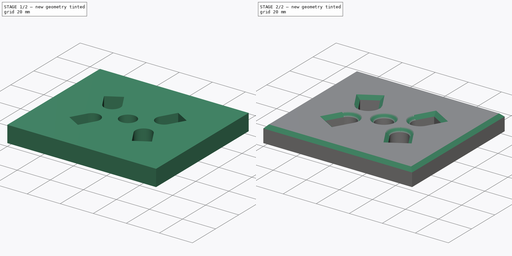
[diagram: build sequence overview — one tinted view per stage of 2, left to right]
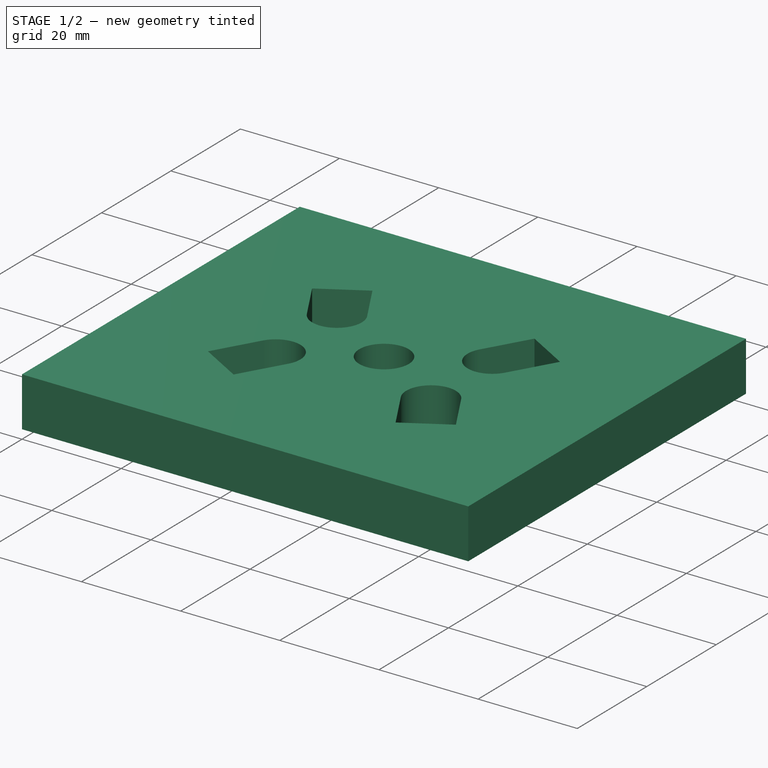
[diagram: stage 1 of 2 — iso view after this stage's code; geometry added in this stage tinted green]
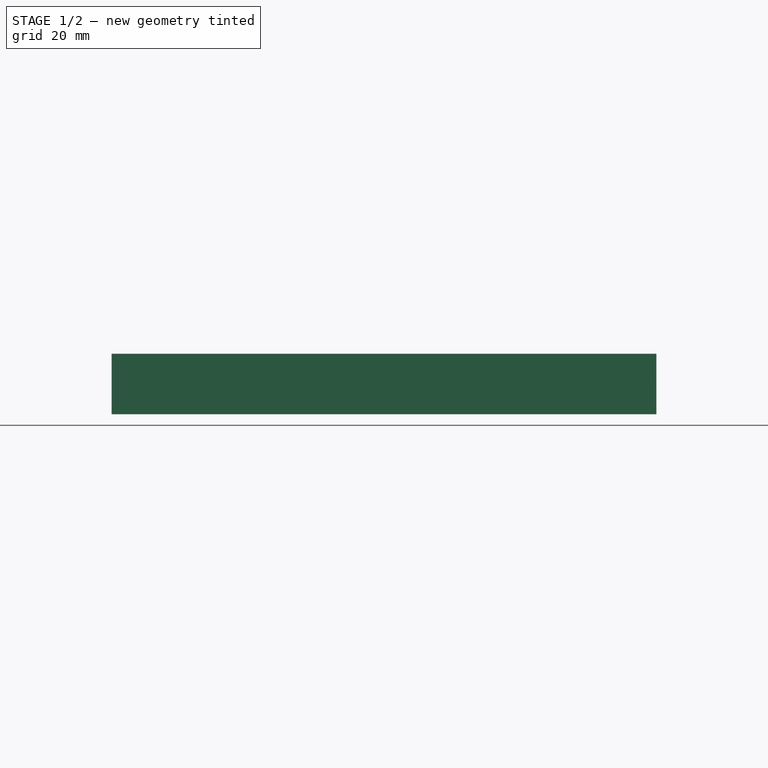
[diagram: stage 1 of 2 — front view after this stage's code; geometry added in this stage tinted green]
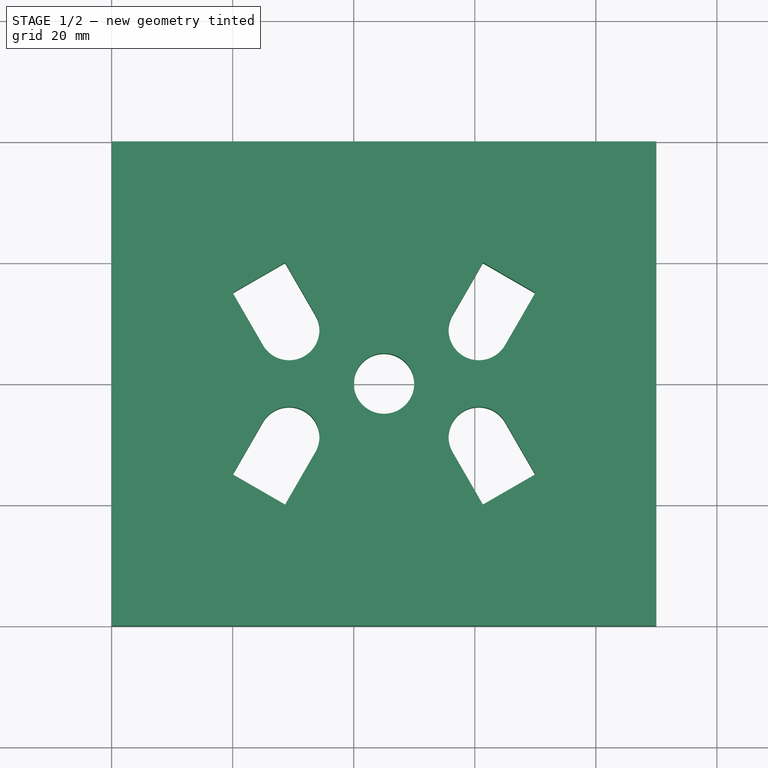
[diagram: stage 1 of 2 — top view after this stage's code; geometry added in this stage tinted green]
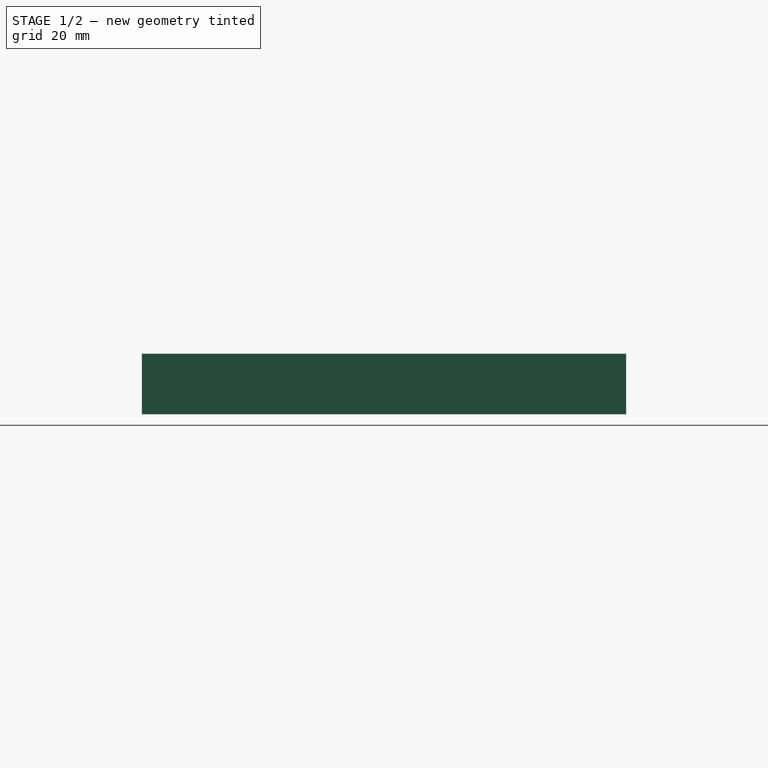
[diagram: stage 1 of 2 — right view after this stage's code; geometry added in this stage tinted green]
FCSTD DOCUMENT  (FreeCAD 0.19R)
Label: RESTRICOES-01
License: All rights reserved
LicenseURL: http://en.wikipedia.org/wiki/All_rights_reserved
objects: Spreadsheet::Sheet×1, Sketcher::SketchObject×1, Part::Extrusion×1, Part::Chamfer×1
note: 3 computed .brp shape members not serialized (recipe doc carries the construction recipe); baked Part::Feature solids carry a one-line shape summary decoded from their .brp

FEATURE [Spreadsheet::Sheet] Spreadsheet
  cells = A1=LARGURA; B1(largura)=80; A2=COMPRIMENTO; B2(comprimento)=90; A3=DIAMETRO; B3(diametro)=10; A4=FURO; B4(furo)=20; A5=ANGULO; B5(angulo)=60; A6=FENDA; B6(fenda)=10; A7=BORDA; B7(borda)=20; A8=ESPESSURA; B8(espessura)=
FEATURE [Sketcher::SketchObject] Sketch
  expr: Constraints[101] = Spreadsheet.comprimento
  expr: Constraints[102] = Spreadsheet.largura
  expr: Constraints[99] = Spreadsheet.angulo
  expr: Constraints[98] = Spreadsheet.fenda
  expr: Constraints[72] = Spreadsheet.borda
  expr: Constraints[81] = Spreadsheet.angulo
  expr: Constraints[83] = Spreadsheet.angulo
  expr: Constraints[82] = Spreadsheet.angulo
  expr: Constraints[104] = Spreadsheet.diametro
  sketch-geometry (36):
    g0: LineSegment StartX=0 StartY=0 StartZ=0 EndX=90 EndY=0 EndZ=0
    g1: LineSegment StartX=90 StartY=0 StartZ=0 EndX=90 EndY=80 EndZ=0
    g2: LineSegment StartX=90 StartY=80 StartZ=0 EndX=0 EndY=80 EndZ=0
    g3: LineSegment StartX=0 StartY=80 StartZ=0 EndX=0 EndY=0 EndZ=0
    g4: LineSegment StartX=28.6603 StartY=60 StartZ=0 EndX=33.6603 EndY=51.3397 EndZ=0
    g5: LineSegment StartX=33.6603 StartY=51.3397 StartZ=0 EndX=25 EndY=46.3397 EndZ=0
    g6: LineSegment StartX=25 StartY=46.3397 StartZ=0 EndX=20 EndY=55 EndZ=0
    g7: LineSegment StartX=20 StartY=55 StartZ=0 EndX=28.6603 EndY=60 EndZ=0
    g8: LineSegment StartX=56.3397 StartY=51.3397 StartZ=0 EndX=61.3397 EndY=60 EndZ=0
    g9: LineSegment StartX=61.3397 StartY=60 StartZ=0 EndX=70 EndY=55 EndZ=0
    g10: LineSegment StartX=70 StartY=55 StartZ=0 EndX=65 EndY=46.3397 EndZ=0
    g11: LineSegment StartX=65 StartY=46.3397 StartZ=0 EndX=56.3397 EndY=51.3397 EndZ=0
    g12: LineSegment StartX=65 StartY=33.6603 StartZ=0 EndX=70 EndY=25 EndZ=0
    g13: LineSegment StartX=70 StartY=25 StartZ=0 EndX=61.3397 EndY=20 EndZ=0
    g14: LineSegment StartX=61.3397 StartY=20 StartZ=0 EndX=56.3397 EndY=28.6603 EndZ=0
    g15: LineSegment StartX=56.3397 StartY=28.6603 StartZ=0 EndX=65 EndY=33.6603 EndZ=0
    g16: ArcOfCircle CenterX=29.3301 CenterY=48.8397 CenterZ=0 NormalX=0 NormalY=0 NormalZ=1 AngleXU=0 Radius=5 StartAngle=3.66519 EndAngle=6.80678
    g17: ArcOfCircle CenterX=60.6699 CenterY=48.8397 CenterZ=0 NormalX=0 NormalY=0 NormalZ=1 AngleXU=0 Radius=5 StartAngle=2.61799 EndAngle=5.75959
    g18: ArcOfCircle CenterX=60.6699 CenterY=31.1603 CenterZ=0 NormalX=0 NormalY=0 NormalZ=1 AngleXU=0 Radius=5 StartAngle=0.523599 EndAngle=3.66519
    g19: LineSegment StartX=70 StartY=60 StartZ=0 EndX=20 EndY=60 EndZ=0
    g20: LineSegment StartX=20 StartY=60 StartZ=0 EndX=20 EndY=5 EndZ=0
    g21: LineSegment StartX=20 StartY=20 StartZ=0 EndX=70 EndY=20 EndZ=0
    g22: LineSegment StartX=70 StartY=20 StartZ=0 EndX=70 EndY=60 EndZ=0
    g23: LineSegment StartX=45 StartY=80 StartZ=0 EndX=45 EndY=60 EndZ=0
    g24: LineSegment StartX=45 StartY=60 StartZ=0 EndX=45 EndY=20 EndZ=0
    g25: LineSegment StartX=45 StartY=20 StartZ=0 EndX=45 EndY=0 EndZ=0
    g26: LineSegment StartX=0 StartY=40 StartZ=0 EndX=20 EndY=40 EndZ=0
    g27: LineSegment StartX=20 StartY=40 StartZ=0 EndX=45 EndY=40 EndZ=0
    g28: LineSegment StartX=45 StartY=40 StartZ=0 EndX=70 EndY=40 EndZ=0
    g29: LineSegment StartX=70 StartY=40 StartZ=0 EndX=90 EndY=40 EndZ=0
    g30: LineSegment StartX=20 StartY=25 StartZ=0 EndX=25 EndY=33.6603 EndZ=0
    g31: LineSegment StartX=25 StartY=33.6603 StartZ=0 EndX=33.6603 EndY=28.6603 EndZ=0
    g32: LineSegment StartX=33.6603 StartY=28.6603 StartZ=0 EndX=28.6603 EndY=20 EndZ=0
    g33: LineSegment StartX=28.6603 StartY=20 StartZ=0 EndX=20 EndY=25 EndZ=0
    g34: ArcOfCircle CenterX=29.3301 CenterY=31.1603 CenterZ=0 NormalX=0 NormalY=0 NormalZ=1 AngleXU=0 Radius=5 StartAngle=5.75959 EndAngle=8.90118
    g35: Circle CenterX=45 CenterY=40 CenterZ=0 NormalX=0 NormalY=0 NormalZ=1 AngleXU=0 Radius=5
  constraints (105):
    c: Coincident(g0,g1)
    c: Coincident(g1,g2)
    c: Coincident(g2,g3)
    c: Coincident(g3,g0)
    c: Horizontal(g0)
    c: Horizontal(g2)
    c: Vertical(g1)
    c: Vertical(g3)
    c: Coincident(g0,g-1)
    c: Coincident(g4,g5)
    c: Coincident(g5,g6)
    c: Coincident(g6,g7)
    c: Coincident(g7,g4)
    c: Coincident(g8,g9)
    c: Coincident(g9,g10)
    c: Coincident(g10,g11)
    c: Coincident(g11,g8)
    c: Coincident(g12,g13)
    c: Coincident(g13,g14)
    c: Coincident(g14,g15)
    c: Coincident(g15,g12)
    c: Parallel(g4,g6)
    c: Parallel(g5,g7)
    c: Parallel(g9,g11)
    c: Parallel(g8,g10)
    c: Parallel(g12,g14)
    c: Parallel(g13,g15)
    c: Perpendicular(g11,g10)
    c: Perpendicular(g5,g6)
    c: Perpendicular(g15,g14)
    c: Equal(g6,g5)
    c: Equal(g5,g11)
    c: Equal(g11,g10)
    c: Equal(g10,g12)
    c: Equal(g12,g15)
    c: Symmetric(g5,g5,g16)
    c: Coincident(g16,g5)
    c: Coincident(g16,g4)
    c: Symmetric(g11,g11,g17)
    c: Coincident(g17,g8)
    c: Coincident(g17,g10)
    c: Symmetric(g15,g15,g18)
    c: Coincident(g18,g12)
    c: Coincident(g18,g14)
    c: Coincident(g19,g20)
    c: Coincident(g21,g22)
    c: Coincident(g22,g19)
    c: Horizontal(g19)
    c: Horizontal(g21)
    c: Vertical(g20)
    c: Vertical(g22)
    c: PointOnObject(g23,g2)
    c: PointOnObject(g23,g19)
    c: Vertical(g23)
    c: Coincident(g24,g23)
    c: Vertical(g24)
    c: Coincident(g25,g24)
    c: Vertical(g25)
    c: Symmetric(g21,g21,g24)
    c: Symmetric(g0,g0,g25)
    c: PointOnObject(g26,g3)
    c: PointOnObject(g26,g20)
    c: Horizontal(g26)
    c: Coincident(g26,g27)
    c: Horizontal(g27)
    c: Coincident(g27,g28)
    c: PointOnObject(g28,g22)
    c: Horizontal(g28)
    c: Coincident(g28,g29)
    c: Horizontal(g29)
    c: Symmetric(g24,g24,g27)
    c: Equal(g23,g29)
    c: DistanceY(g23,g23) = 20
    c: PointOnObject(g4,g19)
    c: PointOnObject(g6,g20)
    c: PointOnObject(g8,g19)
    c: PointOnObject(g9,g22)
    c: Equal(g25,g26)
    c: Equal(g26,g29)
    c: PointOnObject(g12,g22)
    c: PointOnObject(g13,g21)
    c: Angle(g4,g19) = 1.0472
    c: Angle(g19,g8) = 1.0472
    c: Angle(g14,g21) = 1.0472
    c: Coincident(g30,g31)
    c: Coincident(g31,g32)
    c: Coincident(g32,g33)
    c: Coincident(g33,g30)
    c: Parallel(g30,g32)
    c: Parallel(g31,g33)
    c: Perpendicular(g31,g32)
    c: Equal(g32,g31)
    c: Symmetric(g31,g31,g34)
    c: Coincident(g34,g31)
    c: Coincident(g34,g30)
    c: Equal(g30,g6)
    c: PointOnObject(g32,g21)
    c: PointOnObject(g30,g20)
    c: Distance(g32) = 10
    c: Angle(g21,g32) = 1.0472
    c: PointOnObject(g29,g1)
    c: DistanceX(g2,g2) = 90
    c: DistanceY(g3,g3) = 80
    c: Coincident(g35,g27)
    c: Diameter(g35) = 10
FEATURE [Part::Extrusion] Extrude
  Base = -> Sketch
  Dir = (0,0,1)
  DirMode = 2
  FaceMakerClass = Part::FaceMakerBullseye
  LengthFwd = 10
  LengthRev = 0
  Solid = true
  Symmetric = false
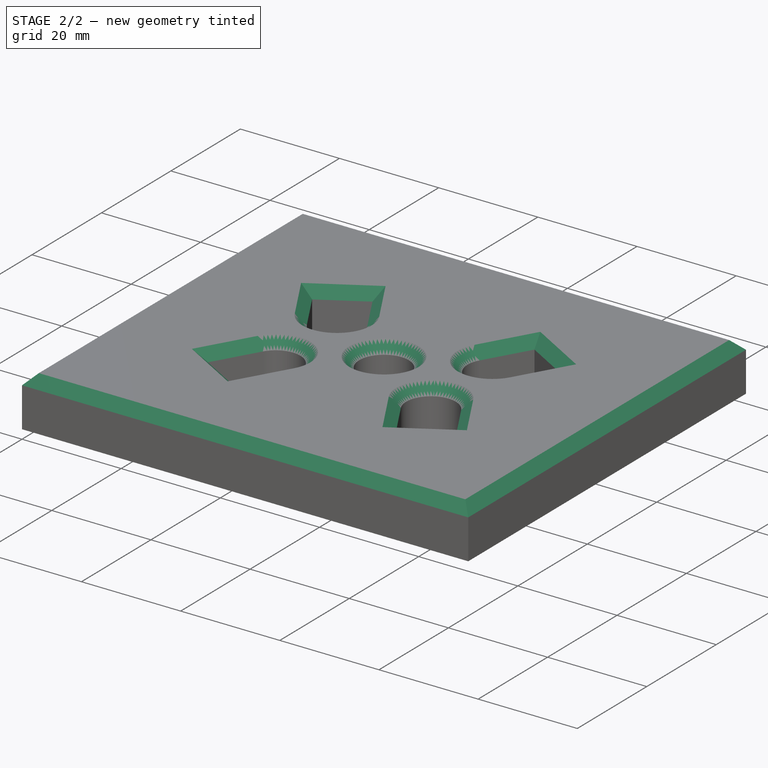
[diagram: stage 2 of 2 — iso view after this stage's code; geometry added in this stage tinted green]
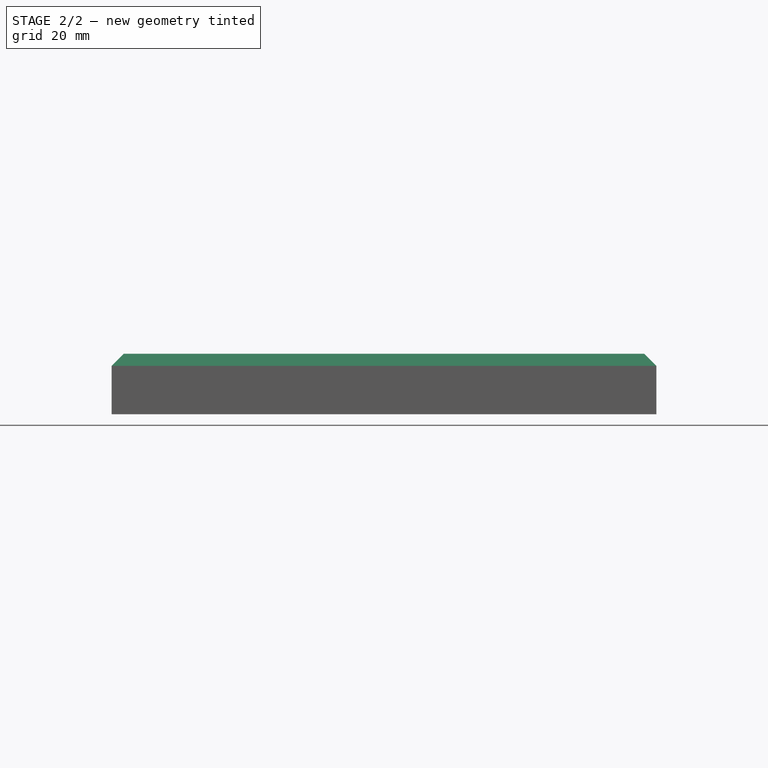
[diagram: stage 2 of 2 — front view after this stage's code; geometry added in this stage tinted green]
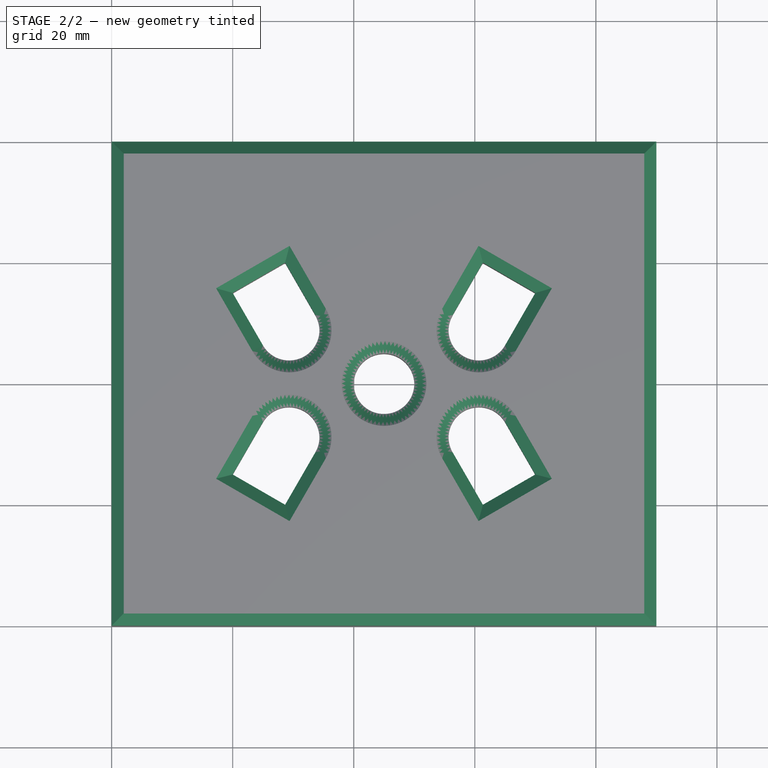
[diagram: stage 2 of 2 — top view after this stage's code; geometry added in this stage tinted green]
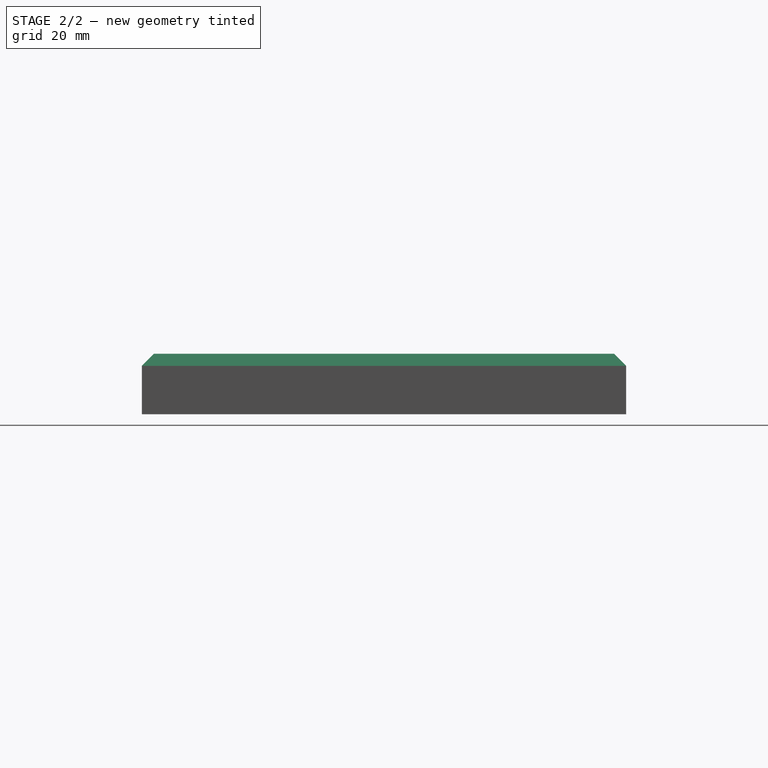
[diagram: stage 2 of 2 — right view after this stage's code; geometry added in this stage tinted green]
FEATURE [Part::Chamfer] Chamfer
  Base = -> Extrude
  Edges = 21 edges r=2: [Edge4,Edge7,Edge10,Edge12,Edge15,Edge19,Edge22,Edge25,Edge27,Edge31,Edge34,Edge37,Edge39,Edge43,Edge46,Edge49,Edge51,Edge55,Edge58,Edge61,Edge63]
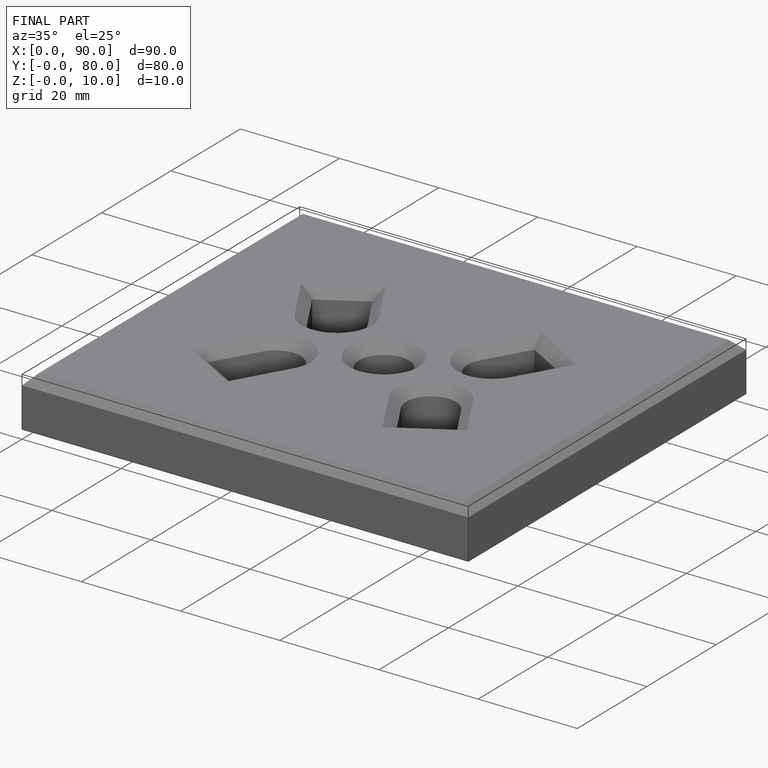
[diagram: finished part — iso view with bounding-box wireframe]
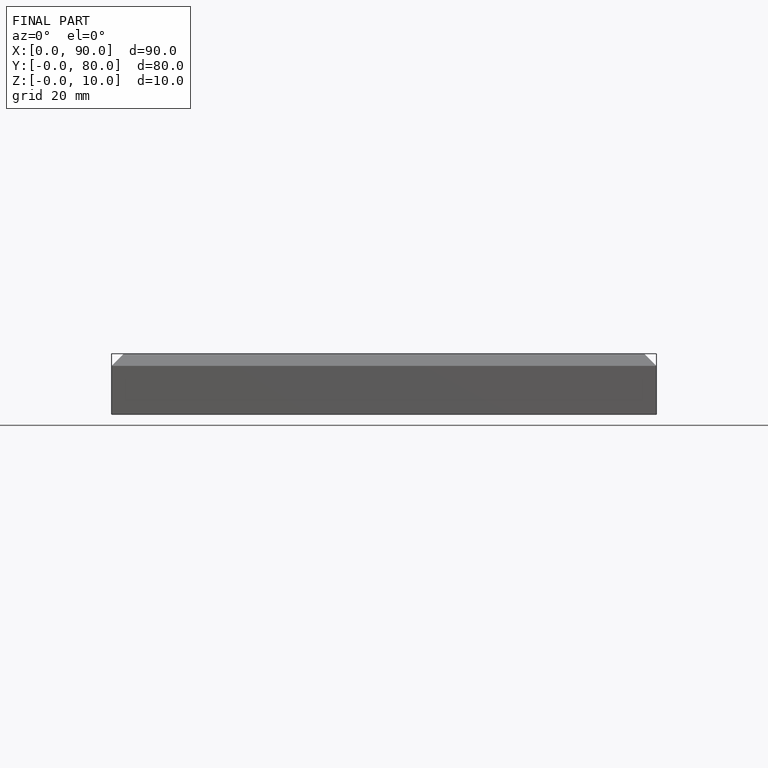
[diagram: finished part — front view with bounding-box wireframe]
